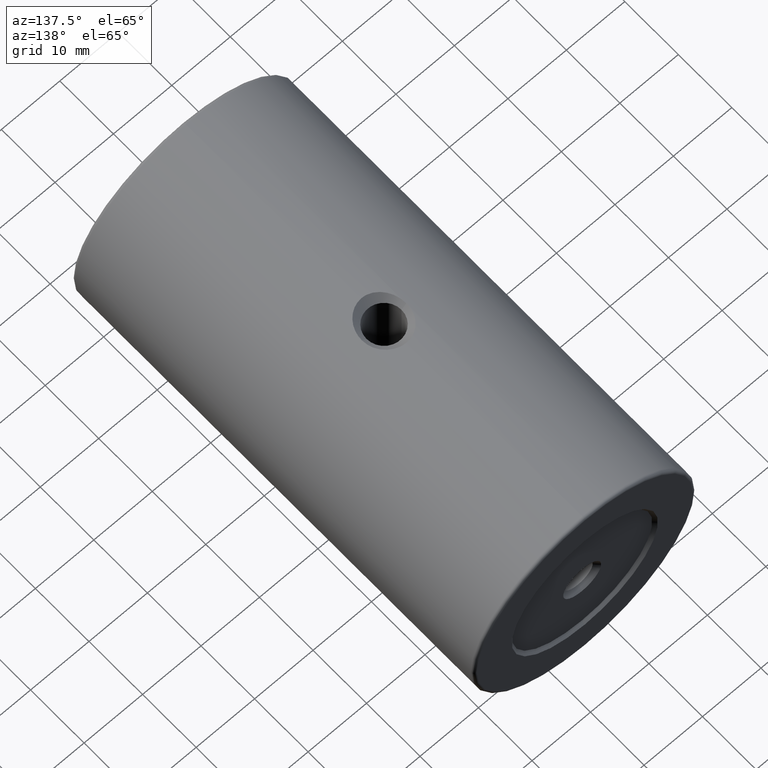
[diagram: clean part render]
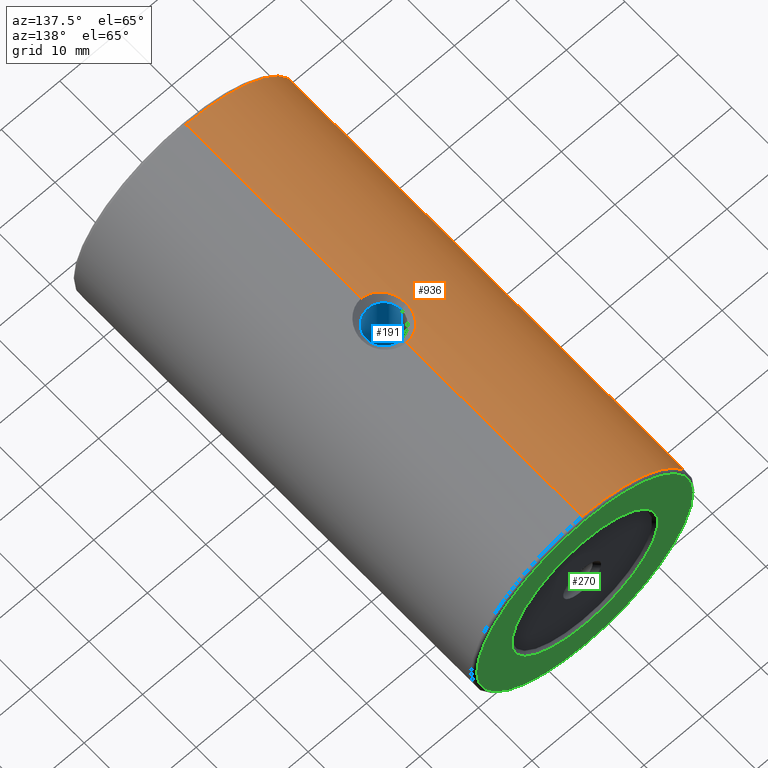
[diagram: same view with three faces highlighted in distinct colors, each labeled with its STEP entity id]
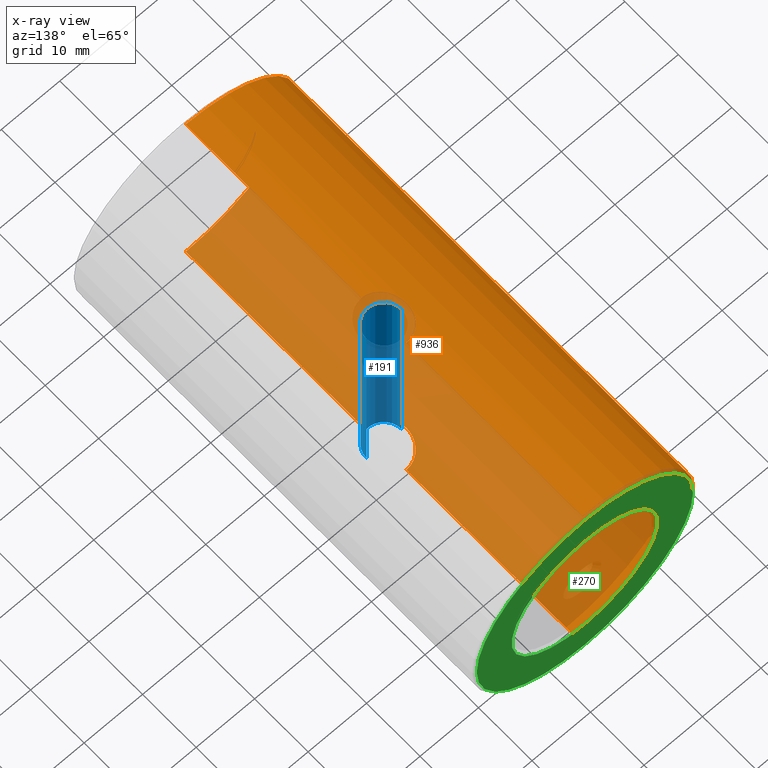
[diagram: x-ray of the same camera — body ghosted, the three highlighted faces saturated]
A machine part, auxiliary view with three faces highlighted in distinct colors.
The next image is the same camera in x-ray (body ghosted, the three faces saturated) — at least one of them is partly hidden behind the body in this view.
Their STEP definitions:

[orange] entity #936 — the highlighted cylindrical surface (partial cylindrical patch) has radius 19 mm, axis along (-0, -1, -0).
#18 = LINE ( 'NONE', #343, #165 ) ;
#20 = FACE_OUTER_BOUND ( 'NONE', #534, .T. ) ;
#28 = VERTEX_POINT ( 'NONE', #975 ) ;
#39 = EDGE_CURVE ( 'NONE', #154, #452, #243, .T. ) ;
#41 = CARTESIAN_POINT ( 'NONE',  ( -86.26127162816044347, -8.313090059122508535, 418.9735347910690848 ) ) ;
#44 = EDGE_CURVE ( 'NONE', #324, #103, #18, .T. ) ;
#45 = CARTESIAN_POINT ( 'NONE',  ( -86.51381476393198966, -8.223524199725767758, 418.9578280137350816 ) ) ;
#50 = CARTESIAN_POINT ( 'NONE',  ( -89.01782207825233684, -4.784939022142112641, 418.6180084472278509 ) ) ;
#59 = CARTESIAN_POINT ( 'NONE',  ( -87.81247192360183362, -1.166828721202192165, 418.8240449429266050 ) ) ;
#60 = CARTESIAN_POINT ( 'NONE',  ( -87.20501299645449933, -7.859601616013272007, 381.1021099489511244 ) ) ;
#64 = CARTESIAN_POINT ( 'NONE',  ( -88.57090845425022962, -2.230408319438852871, 381.2961339358312216 ) ) ;
#66 = CARTESIAN_POINT ( 'NONE',  ( -85.22679983354142053, -8.461339991674268646, 381.0000000000000000 ) ) ;
#72 = CARTESIAN_POINT ( 'NONE',  ( -85.22679983354142053, -41.26133999167427646, 400.0000000000000000 ) ) ;
#86 = CARTESIAN_POINT ( 'NONE',  ( -85.49146371113677390, -8.461339991674272198, 381.0000000000000000 ) ) ;
#87 = ORIENTED_EDGE ( 'NONE', *, *, #594, .T. ) ;
#92 = CARTESIAN_POINT ( 'NONE',  ( -89.04018469271751712, -4.261339991674283567, 381.3866151408238920 ) ) ;
#103 = VERTEX_POINT ( 'NONE', #290 ) ;
#121 = CIRCLE ( 'NONE', #699, 19.00000000000001776 ) ;
#124 = CARTESIAN_POINT ( 'NONE',  ( -88.68189959692058721, -6.053472744008438156, 418.6834286230944713 ) ) ;
#132 = DIRECTION ( 'NONE',  ( -0.0000000000000000000, -1.000000000000000000, -0.0000000000000000000 ) ) ;
#136 = VECTOR ( 'NONE', #132, 1000.000000000000000 ) ;
#141 = CARTESIAN_POINT ( 'NONE',  ( -86.98394057735728779, -0.5256534841595331686, 418.9200517613895727 ) ) ;
#142 = CARTESIAN_POINT ( 'NONE',  ( -88.68189959692058721, -6.053472744008438156, 381.3165713769054150 ) ) ;
#154 = VERTEX_POINT ( 'NONE', #443 ) ;
#158 = VERTEX_POINT ( 'NONE', #227 ) ;
#165 = VECTOR ( 'NONE', #651, 1000.000000000000000 ) ;
#179 = LINE ( 'NONE', #729, #710 ) ;
#180 = CARTESIAN_POINT ( 'NONE',  ( -85.22679983354142053, 33.23866000832571643, 381.0000000000000000 ) ) ;
#185 = EDGE_CURVE ( 'NONE', #752, #375, #201, .T. ) ;
#201 = B_SPLINE_CURVE_WITH_KNOTS ( 'NONE', 3,
 ( #600, #903, #207, #519, #296, #142, #610, #830, #462, #769, #757, #60, #989, #909, #525, #512, #86, #66 ),
 .UNSPECIFIED., .F., .F.,
 ( 4, 2, 2, 2, 2, 2, 2, 2, 4 ),
 ( 0.02262406464777516613, 0.02341192012650424731, 0.02419977560523332849, 0.02498763108396241314, 0.02577548656269149432, 0.02656334204142057551, 0.02735119752014966016, 0.02813905299887874134, 0.02892690847760782252 ),
 .UNSPECIFIED. ) ;
#205 = CARTESIAN_POINT ( 'NONE',  ( -89.04018469271750291, -4.524194045943173315, 418.6133848591762217 ) ) ;
#207 = CARTESIAN_POINT ( 'NONE',  ( -89.01782207825233684, -4.784939022142112641, 381.3819915527722060 ) ) ;
#211 = CARTESIAN_POINT ( 'NONE',  ( -85.22679983354142053, 33.23866000832571643, 381.0000000000000000 ) ) ;
#217 = CARTESIAN_POINT ( 'NONE',  ( -89.04018469271751712, -3.999029654920558841, 418.6133848591761648 ) ) ;
#223 = EDGE_CURVE ( 'NONE', #294, #103, #121, .T. ) ;
#225 = CARTESIAN_POINT ( 'NONE',  ( -85.74900820764774778, -0.09101629208817690886, 418.9945733790917757 ) ) ;
#227 = CARTESIAN_POINT ( 'NONE',  ( -85.22679983354142053, -0.06133999167429880772, 381.0000000000000000 ) ) ;
#239 = ORIENTED_EDGE ( 'NONE', *, *, #185, .T. ) ;
#241 = CARTESIAN_POINT ( 'NONE',  ( -86.26440072079715549, -0.2103516366053766184, 381.0266000980727767 ) ) ;
#243 = CIRCLE ( 'NONE', #999, 19.00000000000001776 ) ;
#266 = DIRECTION ( 'NONE',  ( 0.0000000000000000000, 0.0000000000000000000, 1.000000000000000000 ) ) ;
#276 = DIRECTION ( 'NONE',  ( 0.0000000000000000000, 0.0000000000000000000, -1.000000000000000000 ) ) ;
#285 = ORIENTED_EDGE ( 'NONE', *, *, #223, .T. ) ;
#290 = CARTESIAN_POINT ( 'NONE',  ( -85.22679983354142053, -41.26133999167427646, 419.0000000000000568 ) ) ;
#294 = VERTEX_POINT ( 'NONE', #870 ) ;
#296 = CARTESIAN_POINT ( 'NONE',  ( -88.86003986455601478, -5.560364975193093251, 381.3503944715658349 ) ) ;
#298 = ORIENTED_EDGE ( 'NONE', *, *, #727, .F. ) ;
#300 = CARTESIAN_POINT ( 'NONE',  ( -87.20501299645449933, -7.859601616013272007, 418.8978900510489325 ) ) ;
#304 = CARTESIAN_POINT ( 'NONE',  ( -88.30889371447072733, -1.779107847670829301, 381.2511769563365078 ) ) ;
#320 = AXIS2_PLACEMENT_3D ( 'NONE', #653, #896, #276 ) ;
#323 = DIRECTION ( 'NONE',  ( 0.0000000000000000000, 0.0000000000000000000, 1.000000000000000000 ) ) ;
#324 = VERTEX_POINT ( 'NONE', #707 ) ;
#332 = CARTESIAN_POINT ( 'NONE',  ( -89.01727933074084831, -3.733366076984472315, 418.6181191867033817 ) ) ;
#343 = CARTESIAN_POINT ( 'NONE',  ( -85.22679983354142053, 33.23866000832571643, 419.0000000000000568 ) ) ;
#345 = CYLINDRICAL_SURFACE ( 'NONE', #320, 19.00000000000001776 ) ;
#358 = B_SPLINE_CURVE_WITH_KNOTS ( 'NONE', 3,
 ( #437, #205, #50, #372, #593, #124, #530, #983, #599, #448, #455, #300, #762, #45, #41, #847, #376, #755 ),
 .UNSPECIFIED., .F., .F.,
 ( 4, 2, 2, 2, 2, 2, 2, 2, 4 ),
 ( 0.02262406464777516613, 0.02341192012650424731, 0.02419977560523332849, 0.02498763108396241314, 0.02577548656269149432, 0.02656334204142057551, 0.02735119752014966016, 0.02813905299887874134, 0.02892690847760782252 ),
 .UNSPECIFIED. ) ;
#363 = CARTESIAN_POINT ( 'NONE',  ( -88.15730954550808462, -1.565196067254975176, 418.7734514940302688 ) ) ;
#372 = CARTESIAN_POINT ( 'NONE',  ( -88.92822251687863400, -5.302205923223622719, 418.6360285018084824 ) ) ;
#375 = VERTEX_POINT ( 'NONE', #965 ) ;
#376 = CARTESIAN_POINT ( 'NONE',  ( -85.49146371113677390, -8.461339991674272198, 419.0000000000001705 ) ) ;
#387 = CARTESIAN_POINT ( 'NONE',  ( -88.92749338337961262, -3.217524007279799481, 381.3638264625174088 ) ) ;
#392 = CARTESIAN_POINT ( 'NONE',  ( -85.74900820764774778, -0.09101629208817690886, 381.0054266209082812 ) ) ;
#393 = DIRECTION ( 'NONE',  ( 0.0000000000000000000, 1.000000000000000000, 0.0000000000000000000 ) ) ;
#418 = DIRECTION ( 'NONE',  ( -0.0000000000000000000, -1.000000000000000000, -0.0000000000000000000 ) ) ;
#437 = CARTESIAN_POINT ( 'NONE',  ( -89.04018469271751712, -4.261339991674283567, 418.6133848591761648 ) ) ;
#442 = CARTESIAN_POINT ( 'NONE',  ( -86.51258600344370109, -0.2986253842693811777, 418.9579180337008211 ) ) ;
#443 = CARTESIAN_POINT ( 'NONE',  ( -85.22679983354142053, 32.73866000832571643, 419.0000000000000568 ) ) ;
#448 = CARTESIAN_POINT ( 'NONE',  ( -87.81196888986544025, -7.356176429533654471, 418.8241028157862615 ) ) ;
#452 = VERTEX_POINT ( 'NONE', #687 ) ;
#454 = VECTOR ( 'NONE', #418, 1000.000000000000000 ) ;
#455 = CARTESIAN_POINT ( 'NONE',  ( -87.61973751830021229, -7.539048035020909921, 418.8498653824453868 ) ) ;
#462 = CARTESIAN_POINT ( 'NONE',  ( -88.15440500365676257, -6.961092752758728963, 381.2261065882171351 ) ) ;
#491 = VERTEX_POINT ( 'NONE', #833 ) ;
#492 = CARTESIAN_POINT ( 'NONE',  ( -87.21008987037792792, -0.6665384523181927534, 381.1026504008992788 ) ) ;
#496 = ORIENTED_EDGE ( 'NONE', *, *, #39, .T. ) ;
#497 = DIRECTION ( 'NONE',  ( -0.0000000000000000000, -1.000000000000000000, -0.0000000000000000000 ) ) ;
#506 = EDGE_CURVE ( 'NONE', #28, #324, #358, .T. ) ;
#511 = CARTESIAN_POINT ( 'NONE',  ( -87.62330431072487613, -0.9868626275845048257, 418.8494039038823757 ) ) ;
#512 = CARTESIAN_POINT ( 'NONE',  ( -85.75119431850812646, -8.431120250548380213, 381.0055227819794936 ) ) ;
#517 = CARTESIAN_POINT ( 'NONE',  ( -86.26440072079715549, -0.2103516366053766184, 418.9733999019272801 ) ) ;
#519 = CARTESIAN_POINT ( 'NONE',  ( -88.92822251687863400, -5.302205923223622719, 381.3639714981914040 ) ) ;
#525 = CARTESIAN_POINT ( 'NONE',  ( -86.26127162816044347, -8.313090059122508535, 381.0264652089310289 ) ) ;
#527 = EDGE_CURVE ( 'NONE', #491, #28, #715, .T. ) ;
#530 = CARTESIAN_POINT ( 'NONE',  ( -88.57188684336087192, -6.290580469037319489, 418.7036980113034588 ) ) ;
#534 = EDGE_LOOP ( 'NONE', ( #298, #496, #602, #941, #239, #87, #285, #735, #968, #836 ) ) ;
#551 = CARTESIAN_POINT ( 'NONE',  ( -85.22679983354142053, -0.06133999167429880772, 381.0000000000000000 ) ) ;
#555 = B_SPLINE_CURVE_WITH_KNOTS ( 'NONE', 3,
 ( #551, #850, #392, #241, #777, #702, #492, #692, #772, #998, #304, #64, #1008, #798, #387, #695, #1004, #92 ),
 .UNSPECIFIED., .F., .F.,
 ( 4, 2, 2, 2, 2, 2, 2, 2, 4 ),
 ( 0.01633425834401431784, 0.01712048413198442517, 0.01790670991995452904, 0.01869293570792463638, 0.01947916149589474372, 0.02026538728386484758, 0.02105161307183495145, 0.02183783885980505879, 0.02262406464777516613 ),
 .UNSPECIFIED. ) ;
#572 = LINE ( 'NONE', #180, #454 ) ;
#589 = CARTESIAN_POINT ( 'NONE',  ( -88.30889371447072733, -1.779107847670829301, 418.7488230436633785 ) ) ;
#593 = CARTESIAN_POINT ( 'NONE',  ( -88.86003986455601478, -5.560364975193093251, 418.6496055284342788 ) ) ;
#594 = EDGE_CURVE ( 'NONE', #375, #294, #907, .T. ) ;
#599 = CARTESIAN_POINT ( 'NONE',  ( -88.15440500365676257, -6.961092752758728963, 418.7738934117829217 ) ) ;
#600 = CARTESIAN_POINT ( 'NONE',  ( -89.04018469271751712, -4.261339991674283567, 381.3866151408238920 ) ) ;
#602 = ORIENTED_EDGE ( 'NONE', *, *, #800, .T. ) ;
#610 = CARTESIAN_POINT ( 'NONE',  ( -88.57188684336087192, -6.290580469037319489, 381.2963019886966549 ) ) ;
#644 = CARTESIAN_POINT ( 'NONE',  ( -85.22679983354142053, 32.73866000832571643, 400.0000000000000000 ) ) ;
#651 = DIRECTION ( 'NONE',  ( -0.0000000000000000000, -1.000000000000000000, -0.0000000000000000000 ) ) ;
#653 = CARTESIAN_POINT ( 'NONE',  ( -85.22679983354142053, 33.23866000832571643, 400.0000000000000000 ) ) ;
#687 = CARTESIAN_POINT ( 'NONE',  ( -85.22679983354142053, 32.73866000832571643, 381.0000000000000000 ) ) ;
#692 = CARTESIAN_POINT ( 'NONE',  ( -87.62330431072487613, -0.9868626275845048257, 381.1505960961178516 ) ) ;
#695 = CARTESIAN_POINT ( 'NONE',  ( -89.01727933074084831, -3.733366076984472315, 381.3818808132967320 ) ) ;
#699 = AXIS2_PLACEMENT_3D ( 'NONE', #72, #393, #323 ) ;
#702 = CARTESIAN_POINT ( 'NONE',  ( -86.98394057735728779, -0.5256534841595331686, 381.0799482386107115 ) ) ;
#707 = CARTESIAN_POINT ( 'NONE',  ( -85.22679983354142053, -8.461339991674268646, 419.0000000000000568 ) ) ;
#710 = VECTOR ( 'NONE', #497, 1000.000000000000000 ) ;
#712 = EDGE_CURVE ( 'NONE', #158, #752, #555, .T. ) ;
#715 = B_SPLINE_CURVE_WITH_KNOTS ( 'NONE', 3,
 ( #902, #988, #225, #517, #442, #141, #768, #511, #59, #363, #589, #899, #823, #746, #749, #332, #217, #992 ),
 .UNSPECIFIED., .F., .F.,
 ( 4, 2, 2, 2, 2, 2, 2, 2, 4 ),
 ( 0.01633425834401431784, 0.01712048413198442517, 0.01790670991995452904, 0.01869293570792463638, 0.01947916149589474372, 0.02026538728386484758, 0.02105161307183495145, 0.02183783885980505879, 0.02262406464777516613 ),
 .UNSPECIFIED. ) ;
#727 = EDGE_CURVE ( 'NONE', #154, #491, #179, .T. ) ;
#729 = CARTESIAN_POINT ( 'NONE',  ( -85.22679983354142053, 33.23866000832571643, 419.0000000000000568 ) ) ;
#735 = ORIENTED_EDGE ( 'NONE', *, *, #44, .F. ) ;
#746 = CARTESIAN_POINT ( 'NONE',  ( -88.86084895124396610, -2.964938769552044828, 418.6494481890263728 ) ) ;
#749 = CARTESIAN_POINT ( 'NONE',  ( -88.92749338337961262, -3.217524007279799481, 418.6361735374826480 ) ) ;
#752 = VERTEX_POINT ( 'NONE', #943 ) ;
#755 = CARTESIAN_POINT ( 'NONE',  ( -85.22679983354142053, -8.461339991674268646, 419.0000000000000568 ) ) ;
#757 = CARTESIAN_POINT ( 'NONE',  ( -87.61973751830021229, -7.539048035020909921, 381.1501346175546701 ) ) ;
#762 = CARTESIAN_POINT ( 'NONE',  ( -86.98410511525524669, -7.996885633606630961, 418.9200298249307366 ) ) ;
#768 = CARTESIAN_POINT ( 'NONE',  ( -87.21008987037792792, -0.6665384523181927534, 418.8973495991008917 ) ) ;
#769 = CARTESIAN_POINT ( 'NONE',  ( -87.81196888986544025, -7.356176429533654471, 381.1758971842136248 ) ) ;
#772 = CARTESIAN_POINT ( 'NONE',  ( -87.81247192360183362, -1.166828721202192165, 381.1759550570734518 ) ) ;
#777 = CARTESIAN_POINT ( 'NONE',  ( -86.51258600344370109, -0.2986253842693811777, 381.0420819662991789 ) ) ;
#798 = CARTESIAN_POINT ( 'NONE',  ( -88.86084895124396610, -2.964938769552044828, 381.3505518109733430 ) ) ;
#800 = EDGE_CURVE ( 'NONE', #452, #158, #572, .T. ) ;
#823 = CARTESIAN_POINT ( 'NONE',  ( -88.68258810927235913, -2.470732174027440387, 418.6833015855973485 ) ) ;
#830 = CARTESIAN_POINT ( 'NONE',  ( -88.30796467933343763, -6.745178320961991325, 381.2510173717518569 ) ) ;
#833 = CARTESIAN_POINT ( 'NONE',  ( -85.22679983354142053, -0.06133999167429880772, 419.0000000000000568 ) ) ;
#836 = ORIENTED_EDGE ( 'NONE', *, *, #527, .F. ) ;
#847 = CARTESIAN_POINT ( 'NONE',  ( -85.75119431850812646, -8.431120250548380213, 418.9944772180206769 ) ) ;
#850 = CARTESIAN_POINT ( 'NONE',  ( -85.48903342595741606, -0.06133999167429705912, 380.9999999999999432 ) ) ;
#870 = CARTESIAN_POINT ( 'NONE',  ( -85.22679983354142053, -41.26133999167427646, 381.0000000000000000 ) ) ;
#896 = DIRECTION ( 'NONE',  ( -0.0000000000000000000, -1.000000000000000000, -0.0000000000000000000 ) ) ;
#899 = CARTESIAN_POINT ( 'NONE',  ( -88.57090845425022962, -2.230408319438852871, 418.7038660641689489 ) ) ;
#902 = CARTESIAN_POINT ( 'NONE',  ( -85.22679983354142053, -0.06133999167429880772, 419.0000000000000568 ) ) ;
#903 = CARTESIAN_POINT ( 'NONE',  ( -89.04018469271750291, -4.524194045943173315, 381.3866151408239489 ) ) ;
#907 = LINE ( 'NONE', #211, #136 ) ;
#909 = CARTESIAN_POINT ( 'NONE',  ( -86.51381476393198966, -8.223524199725767758, 381.0421719862650889 ) ) ;
#936 = ADVANCED_FACE ( 'NONE', ( #20 ), #345, .T. ) ;
#941 = ORIENTED_EDGE ( 'NONE', *, *, #712, .T. ) ;
#943 = CARTESIAN_POINT ( 'NONE',  ( -89.04018469271751712, -4.261339991674283567, 381.3866151408238920 ) ) ;
#958 = DIRECTION ( 'NONE',  ( -0.0000000000000000000, -1.000000000000000000, -0.0000000000000000000 ) ) ;
#965 = CARTESIAN_POINT ( 'NONE',  ( -85.22679983354142053, -8.461339991674268646, 381.0000000000000000 ) ) ;
#968 = ORIENTED_EDGE ( 'NONE', *, *, #506, .F. ) ;
#975 = CARTESIAN_POINT ( 'NONE',  ( -89.04018469271751712, -4.261339991674283567, 418.6133848591761648 ) ) ;
#983 = CARTESIAN_POINT ( 'NONE',  ( -88.30796467933343763, -6.745178320961991325, 418.7489826282481999 ) ) ;
#988 = CARTESIAN_POINT ( 'NONE',  ( -85.48903342595741606, -0.06133999167429705912, 419.0000000000001705 ) ) ;
#989 = CARTESIAN_POINT ( 'NONE',  ( -86.98410511525524669, -7.996885633606630961, 381.0799701750693771 ) ) ;
#992 = CARTESIAN_POINT ( 'NONE',  ( -89.04018469271751712, -4.261339991674283567, 418.6133848591761648 ) ) ;
#998 = CARTESIAN_POINT ( 'NONE',  ( -88.15730954550808462, -1.565196067254975176, 381.2265485059697880 ) ) ;
#999 = AXIS2_PLACEMENT_3D ( 'NONE', #644, #958, #266 ) ;
#1004 = CARTESIAN_POINT ( 'NONE',  ( -89.04018469271751712, -3.999029654920558841, 381.3866151408238920 ) ) ;
#1008 = CARTESIAN_POINT ( 'NONE',  ( -88.68258810927235913, -2.470732174027440387, 381.3166984144028220 ) ) ;

[blue] entity #191 — the highlighted cylindrical surface (edge-blend (fillet) strip) has radius 3 mm, axis along (-0, -0, 1).
#8 = DIRECTION ( 'NONE',  ( -0.0000000000000000000, -0.0000000000000000000, 1.000000000000000000 ) ) ;
#144 = CIRCLE ( 'NONE', #362, 3.000000000000002665 ) ;
#164 = FACE_OUTER_BOUND ( 'NONE', #353, .T. ) ;
#170 = LINE ( 'NONE', #808, #390 ) ;
#191 = ADVANCED_FACE ( 'NONE', ( #164 ), #405, .F. ) ;
#196 = DIRECTION ( 'NONE',  ( 1.000000000000000000, 0.0000000000000000000, 0.0000000000000000000 ) ) ;
#246 = VERTEX_POINT ( 'NONE', #627 ) ;
#254 = VERTEX_POINT ( 'NONE', #624 ) ;
#260 = DIRECTION ( 'NONE',  ( -1.000000000000000000, 0.0000000000000000000, 0.0000000000000000000 ) ) ;
#315 = CARTESIAN_POINT ( 'NONE',  ( -88.22679983354142053, -4.261339991674281791, 381.0000000000000000 ) ) ;
#351 = CARTESIAN_POINT ( 'NONE',  ( -88.22679983354142053, -4.261339991674281791, 382.2000000000000455 ) ) ;
#353 = EDGE_LOOP ( 'NONE', ( #504, #937, #613, #871 ) ) ;
#357 = AXIS2_PLACEMENT_3D ( 'NONE', #1011, #427, #260 ) ;
#362 = AXIS2_PLACEMENT_3D ( 'NONE', #664, #973, #196 ) ;
#389 = DIRECTION ( 'NONE',  ( 1.000000000000000000, 0.0000000000000000000, 0.0000000000000000000 ) ) ;
#390 = VECTOR ( 'NONE', #420, 1000.000000000000000 ) ;
#403 = VERTEX_POINT ( 'NONE', #351 ) ;
#405 = CYLINDRICAL_SURFACE ( 'NONE', #595, 3.000000000000002665 ) ;
#409 = EDGE_CURVE ( 'NONE', #246, #737, #170, .T. ) ;
#420 = DIRECTION ( 'NONE',  ( -0.0000000000000000000, -0.0000000000000000000, 1.000000000000000000 ) ) ;
#427 = DIRECTION ( 'NONE',  ( -0.0000000000000000000, -0.0000000000000000000, -1.000000000000000000 ) ) ;
#504 = ORIENTED_EDGE ( 'NONE', *, *, #792, .T. ) ;
#543 = EDGE_CURVE ( 'NONE', #737, #254, #144, .T. ) ;
#580 = CIRCLE ( 'NONE', #357, 3.000000000000002665 ) ;
#595 = AXIS2_PLACEMENT_3D ( 'NONE', #940, #631, #389 ) ;
#613 = ORIENTED_EDGE ( 'NONE', *, *, #543, .F. ) ;
#624 = CARTESIAN_POINT ( 'NONE',  ( -88.22679983354142053, -4.261339991674283567, 417.8000000000000114 ) ) ;
#627 = CARTESIAN_POINT ( 'NONE',  ( -82.22679983354142053, -4.261339991674281791, 382.2000000000000455 ) ) ;
#631 = DIRECTION ( 'NONE',  ( -0.0000000000000000000, -0.0000000000000000000, 1.000000000000000000 ) ) ;
#664 = CARTESIAN_POINT ( 'NONE',  ( -85.22679983354142053, -4.261339991674283567, 417.8000000000000114 ) ) ;
#684 = EDGE_CURVE ( 'NONE', #403, #254, #845, .T. ) ;
#737 = VERTEX_POINT ( 'NONE', #1014 ) ;
#792 = EDGE_CURVE ( 'NONE', #246, #403, #580, .T. ) ;
#808 = CARTESIAN_POINT ( 'NONE',  ( -82.22679983354142053, -4.261339991674281791, 381.0000000000000000 ) ) ;
#825 = VECTOR ( 'NONE', #8, 1000.000000000000000 ) ;
#845 = LINE ( 'NONE', #315, #825 ) ;
#871 = ORIENTED_EDGE ( 'NONE', *, *, #409, .F. ) ;
#937 = ORIENTED_EDGE ( 'NONE', *, *, #684, .T. ) ;
#940 = CARTESIAN_POINT ( 'NONE',  ( -85.22679983354142053, -4.261339991674281791, 381.0000000000000000 ) ) ;
#973 = DIRECTION ( 'NONE',  ( 0.0000000000000000000, 0.0000000000000000000, -1.000000000000000000 ) ) ;
#1011 = CARTESIAN_POINT ( 'NONE',  ( -85.22679983354142053, -4.261339991674283567, 382.2000000000000455 ) ) ;
#1014 = CARTESIAN_POINT ( 'NONE',  ( -82.22679983354142053, -4.261339991674283567, 417.8000000000000114 ) ) ;

[green] entity #270 — the highlighted planar face has unit normal (0, 1, 0).
#3 = EDGE_LOOP ( 'NONE', ( #540, #228 ) ) ;
#23 = CARTESIAN_POINT ( 'NONE',  ( -85.22679983354142053, 33.23866000832571643, 400.0000000000000000 ) ) ;
#38 = VERTEX_POINT ( 'NONE', #721 ) ;
#63 = CARTESIAN_POINT ( 'NONE',  ( -85.22679983354142053, 33.23866000832571643, 418.5000000000000568 ) ) ;
#83 = CIRCLE ( 'NONE', #774, 12.50000000000001066 ) ;
#112 = DIRECTION ( 'NONE',  ( 0.0000000000000000000, 0.0000000000000000000, 1.000000000000000000 ) ) ;
#114 = DIRECTION ( 'NONE',  ( 0.0000000000000000000, 0.0000000000000000000, 1.000000000000000000 ) ) ;
#168 = AXIS2_PLACEMENT_3D ( 'NONE', #23, #273, #503 ) ;
#216 = EDGE_LOOP ( 'NONE', ( #665, #951 ) ) ;
#228 = ORIENTED_EDGE ( 'NONE', *, *, #406, .T. ) ;
#231 = CARTESIAN_POINT ( 'NONE',  ( -85.22679983354142053, 33.23866000832571643, 400.0000000000000000 ) ) ;
#236 = CARTESIAN_POINT ( 'NONE',  ( -85.22679983354142053, 33.23866000832571643, 400.0000000000000000 ) ) ;
#244 = FACE_OUTER_BOUND ( 'NONE', #3, .T. ) ;
#253 = DIRECTION ( 'NONE',  ( 0.0000000000000000000, -0.0000000000000000000, 1.000000000000000000 ) ) ;
#265 = EDGE_CURVE ( 'NONE', #775, #464, #518, .T. ) ;
#270 = ADVANCED_FACE ( 'NONE', ( #787, #244 ), #714, .T. ) ;
#273 = DIRECTION ( 'NONE',  ( 0.0000000000000000000, 1.000000000000000000, 0.0000000000000000000 ) ) ;
#292 = CARTESIAN_POINT ( 'NONE',  ( -85.22679983354142053, 33.23866000832571643, 381.5000000000000000 ) ) ;
#406 = EDGE_CURVE ( 'NONE', #464, #775, #515, .T. ) ;
#439 = EDGE_CURVE ( 'NONE', #521, #38, #617, .T. ) ;
#464 = VERTEX_POINT ( 'NONE', #292 ) ;
#488 = AXIS2_PLACEMENT_3D ( 'NONE', #236, #945, #548 ) ;
#503 = DIRECTION ( 'NONE',  ( 0.0000000000000000000, 0.0000000000000000000, 1.000000000000000000 ) ) ;
#515 = CIRCLE ( 'NONE', #905, 18.50000000000001776 ) ;
#518 = CIRCLE ( 'NONE', #488, 18.50000000000001776 ) ;
#521 = VERTEX_POINT ( 'NONE', #682 ) ;
#540 = ORIENTED_EDGE ( 'NONE', *, *, #265, .T. ) ;
#548 = DIRECTION ( 'NONE',  ( 0.0000000000000000000, 0.0000000000000000000, 1.000000000000000000 ) ) ;
#569 = CARTESIAN_POINT ( 'NONE',  ( -85.22679983354142053, 33.23866000832571643, 400.0000000000000000 ) ) ;
#617 = CIRCLE ( 'NONE', #168, 12.50000000000001066 ) ;
#634 = DIRECTION ( 'NONE',  ( 0.0000000000000000000, 1.000000000000000000, 0.0000000000000000000 ) ) ;
#639 = CARTESIAN_POINT ( 'NONE',  ( -85.22679983354142053, 33.23866000832571643, 400.0000000000000000 ) ) ;
#665 = ORIENTED_EDGE ( 'NONE', *, *, #439, .F. ) ;
#682 = CARTESIAN_POINT ( 'NONE',  ( -85.22679983354142053, 33.23866000832571643, 412.5000000000000568 ) ) ;
#714 = PLANE ( 'NONE',  #828 ) ;
#721 = CARTESIAN_POINT ( 'NONE',  ( -85.22679983354142053, 33.23866000832571643, 387.5000000000000000 ) ) ;
#751 = DIRECTION ( 'NONE',  ( 0.0000000000000000000, 1.000000000000000000, 0.0000000000000000000 ) ) ;
#774 = AXIS2_PLACEMENT_3D ( 'NONE', #639, #751, #114 ) ;
#775 = VERTEX_POINT ( 'NONE', #63 ) ;
#787 = FACE_BOUND ( 'NONE', #216, .T. ) ;
#828 = AXIS2_PLACEMENT_3D ( 'NONE', #231, #634, #253 ) ;
#905 = AXIS2_PLACEMENT_3D ( 'NONE', #569, #957, #112 ) ;
#945 = DIRECTION ( 'NONE',  ( 0.0000000000000000000, 1.000000000000000000, 0.0000000000000000000 ) ) ;
#951 = ORIENTED_EDGE ( 'NONE', *, *, #1009, .F. ) ;
#957 = DIRECTION ( 'NONE',  ( 0.0000000000000000000, 1.000000000000000000, 0.0000000000000000000 ) ) ;
#1009 = EDGE_CURVE ( 'NONE', #38, #521, #83, .T. ) ;